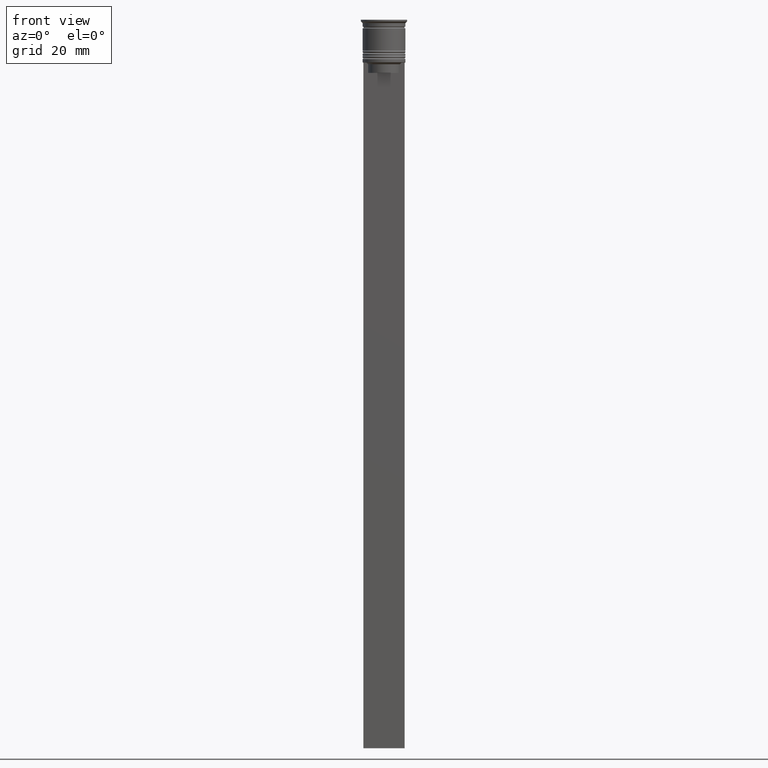
[diagram: clean part render]
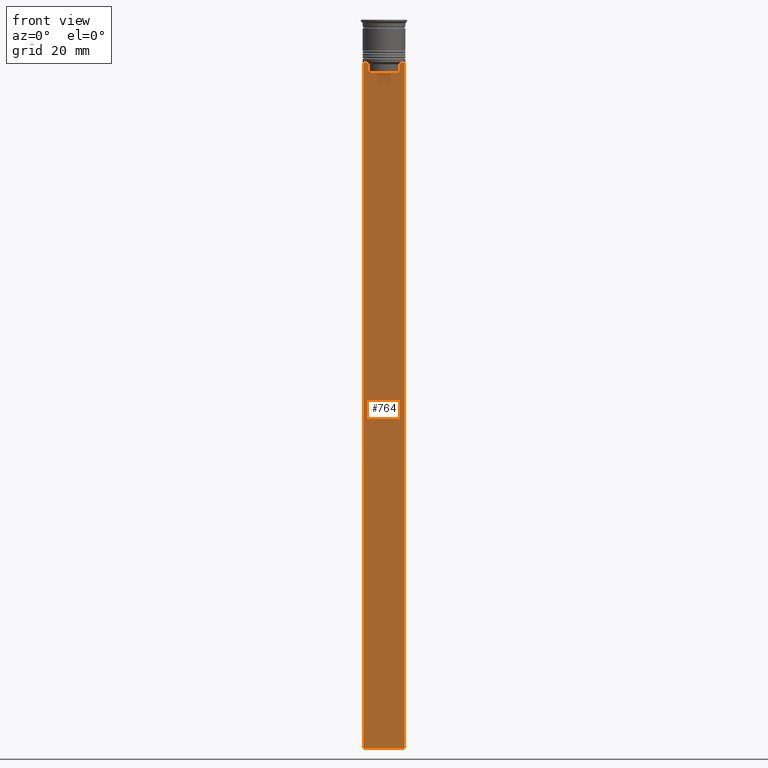
[diagram: same view with one face highlighted and labeled with its STEP entity id]
A machine part, front view. The second image highlights one B-rep face of the part: STEP entity #764.
In plain terms, the highlighted planar face has unit normal (0, -1, -0).
Its self-contained STEP definition (entity closure, byte-faithful):
#3 = CARTESIAN_POINT ( 'NONE',  ( -5.999999999999983125, -0.5000000000000017764, -0.4584054212077061097 ) ) ;
#13 = B_SPLINE_CURVE_WITH_KNOTS ( 'NONE', 3,
 ( #1897, #294, #2239, #1358 ),
 .UNSPECIFIED., .F., .F.,
 ( 4, 4 ),
 ( 0.008759809102772709091, 0.009468778395565353653 ),
 .UNSPECIFIED. ) ;
#74 = CARTESIAN_POINT ( 'NONE',  ( 6.000000000000016875, -0.5000000000000017764, -212.5000000000000284 ) ) ;
#76 = EDGE_CURVE ( 'NONE', #2325, #270, #371, .T. ) ;
#112 = EDGE_CURVE ( 'NONE', #728, #2020, #1290, .T. ) ;
#139 = CARTESIAN_POINT ( 'NONE',  ( 0.000000000000000000, -0.5000000000000022204, -15.50000000000000000 ) ) ;
#142 = LINE ( 'NONE', #857, #750 ) ;
#156 = ORIENTED_EDGE ( 'NONE', *, *, #1346, .F. ) ;
#163 = CARTESIAN_POINT ( 'NONE',  ( 4.623040125285526436, -0.5000000000000017764, -13.00000000000000178 ) ) ;
#165 = EDGE_CURVE ( 'NONE', #2020, #2158, #385, .T. ) ;
#181 = VERTEX_POINT ( 'NONE', #1642 ) ;
#192 = DIRECTION ( 'NONE',  ( 1.000000000000000000, 0.000000000000000000, 0.000000000000000000 ) ) ;
#270 = VERTEX_POINT ( 'NONE', #1501 ) ;
#293 = CARTESIAN_POINT ( 'NONE',  ( 4.623040125285526436, -0.5000000000000022204, -15.50000000000000000 ) ) ;
#294 = CARTESIAN_POINT ( 'NONE',  ( -4.958169823806760412, -0.5000000000000017764, -12.66670956677067927 ) ) ;
#316 = VERTEX_POINT ( 'NONE', #641 ) ;
#318 = DIRECTION ( 'NONE',  ( 1.000000000000000000, 0.000000000000000000, 0.000000000000000000 ) ) ;
#332 = DIRECTION ( 'NONE',  ( 0.000000000000000000, 0.000000000000000000, -1.000000000000000000 ) ) ;
#371 = LINE ( 'NONE', #733, #1041 ) ;
#385 = LINE ( 'NONE', #1104, #555 ) ;
#465 = EDGE_CURVE ( 'NONE', #2158, #1330, #642, .T. ) ;
#495 = EDGE_CURVE ( 'NONE', #1330, #316, #1263, .T. ) ;
#555 = VECTOR ( 'NONE', #1094, 1000.000000000000000 ) ;
#581 = EDGE_LOOP ( 'NONE', ( #1700, #1282, #616, #2177, #156, #963, #937, #2254, #2233, #2289 ) ) ;
#602 = CARTESIAN_POINT ( 'NONE',  ( -5.125670687822231564, -0.5000000000000017764, -12.50000000000000000 ) ) ;
#616 = ORIENTED_EDGE ( 'NONE', *, *, #2081, .T. ) ;
#627 = VERTEX_POINT ( 'NONE', #602 ) ;
#641 = CARTESIAN_POINT ( 'NONE',  ( 6.000000000000016875, -0.5000000000000017764, -12.50000000000000000 ) ) ;
#642 = B_SPLINE_CURVE_WITH_KNOTS ( 'NONE', 3,
 ( #2306, #2162, #1286, #2341 ),
 .UNSPECIFIED., .F., .F.,
 ( 4, 4 ),
 ( 0.02203698174624552780, 0.02275222543365896383 ),
 .UNSPECIFIED. ) ;
#705 = VECTOR ( 'NONE', #318, 1000.000000000000000 ) ;
#722 = CARTESIAN_POINT ( 'NONE',  ( 6.000000000000016875, -0.5000000000000017764, -12.50000000000000000 ) ) ;
#728 = VERTEX_POINT ( 'NONE', #1737 ) ;
#733 = CARTESIAN_POINT ( 'NONE',  ( 6.000000000000016875, -0.5000000000000017764, -212.5000000000000284 ) ) ;
#750 = VECTOR ( 'NONE', #332, 1000.000000000000000 ) ;
#764 = ADVANCED_FACE ( 'NONE', ( #995 ), #1209, .T. ) ;
#777 = EDGE_CURVE ( 'NONE', #627, #181, #13, .T. ) ;
#857 = CARTESIAN_POINT ( 'NONE',  ( -4.623040125285526436, -0.5000000000000017764, 0.000000000000000000 ) ) ;
#937 = ORIENTED_EDGE ( 'NONE', *, *, #465, .F. ) ;
#963 = ORIENTED_EDGE ( 'NONE', *, *, #495, .F. ) ;
#995 = FACE_OUTER_BOUND ( 'NONE', #581, .T. ) ;
#1041 = VECTOR ( 'NONE', #1402, 1000.000000000000000 ) ;
#1069 = VERTEX_POINT ( 'NONE', #1903 ) ;
#1082 = CARTESIAN_POINT ( 'NONE',  ( 6.000000000000016875, -0.5000000000000017764, -12.50000000000000000 ) ) ;
#1094 = DIRECTION ( 'NONE',  ( -0.000000000000000000, -0.000000000000000000, 1.000000000000000000 ) ) ;
#1104 = CARTESIAN_POINT ( 'NONE',  ( 4.623040125285526436, -0.5000000000000017764, 0.000000000000000000 ) ) ;
#1209 = PLANE ( 'NONE',  #1384 ) ;
#1222 = LINE ( 'NONE', #3, #1998 ) ;
#1257 = CARTESIAN_POINT ( 'NONE',  ( 5.125670687822231564, -0.5000000000000017764, -12.50000000000000000 ) ) ;
#1263 = LINE ( 'NONE', #722, #1651 ) ;
#1282 = ORIENTED_EDGE ( 'NONE', *, *, #1366, .F. ) ;
#1286 = CARTESIAN_POINT ( 'NONE',  ( 4.958169719475987947, -0.5000000000000017764, -12.66670967060858111 ) ) ;
#1288 = VECTOR ( 'NONE', #2156, 1000.000000000000000 ) ;
#1290 = LINE ( 'NONE', #139, #705 ) ;
#1330 = VERTEX_POINT ( 'NONE', #1257 ) ;
#1346 = EDGE_CURVE ( 'NONE', #316, #2325, #1769, .T. ) ;
#1358 = CARTESIAN_POINT ( 'NONE',  ( -4.623040125285526436, -0.5000000000000017764, -13.00000000000000178 ) ) ;
#1366 = EDGE_CURVE ( 'NONE', #1069, #627, #1565, .T. ) ;
#1380 = CARTESIAN_POINT ( 'NONE',  ( 6.000000000000016875, -0.5000000000000017764, -0.4584054212077061097 ) ) ;
#1384 = AXIS2_PLACEMENT_3D ( 'NONE', #1380, #1719, #2114 ) ;
#1389 = VECTOR ( 'NONE', #1969, 1000.000000000000000 ) ;
#1402 = DIRECTION ( 'NONE',  ( -1.000000000000000000, 0.000000000000000000, 0.000000000000000000 ) ) ;
#1501 = CARTESIAN_POINT ( 'NONE',  ( -5.999999999999983125, -0.5000000000000017764, -212.5000000000000284 ) ) ;
#1565 = LINE ( 'NONE', #1082, #1389 ) ;
#1618 = DIRECTION ( 'NONE',  ( 0.000000000000000000, 0.000000000000000000, -1.000000000000000000 ) ) ;
#1642 = CARTESIAN_POINT ( 'NONE',  ( -4.623040125285526436, -0.5000000000000017764, -13.00000000000000178 ) ) ;
#1651 = VECTOR ( 'NONE', #192, 1000.000000000000000 ) ;
#1700 = ORIENTED_EDGE ( 'NONE', *, *, #777, .F. ) ;
#1719 = DIRECTION ( 'NONE',  ( 0.000000000000000000, -1.000000000000000000, -0.000000000000000000 ) ) ;
#1737 = CARTESIAN_POINT ( 'NONE',  ( -4.623040125285526436, -0.5000000000000022204, -15.50000000000000000 ) ) ;
#1769 = LINE ( 'NONE', #2121, #1288 ) ;
#1897 = CARTESIAN_POINT ( 'NONE',  ( -5.125670687822231564, -0.5000000000000017764, -12.50000000000000000 ) ) ;
#1903 = CARTESIAN_POINT ( 'NONE',  ( -5.999999999999983125, -0.5000000000000017764, -12.50000000000000000 ) ) ;
#1969 = DIRECTION ( 'NONE',  ( 1.000000000000000000, 0.000000000000000000, 0.000000000000000000 ) ) ;
#1998 = VECTOR ( 'NONE', #1618, 1000.000000000000000 ) ;
#2020 = VERTEX_POINT ( 'NONE', #293 ) ;
#2081 = EDGE_CURVE ( 'NONE', #1069, #270, #1222, .T. ) ;
#2114 = DIRECTION ( 'NONE',  ( 0.000000000000000000, 0.000000000000000000, -1.000000000000000000 ) ) ;
#2121 = CARTESIAN_POINT ( 'NONE',  ( 6.000000000000016875, -0.5000000000000017764, -0.4584054212077061097 ) ) ;
#2135 = EDGE_CURVE ( 'NONE', #181, #728, #142, .T. ) ;
#2156 = DIRECTION ( 'NONE',  ( 0.000000000000000000, 0.000000000000000000, -1.000000000000000000 ) ) ;
#2158 = VERTEX_POINT ( 'NONE', #163 ) ;
#2162 = CARTESIAN_POINT ( 'NONE',  ( 4.790630799407577634, -0.5000000000000017764, -12.83338098686238915 ) ) ;
#2177 = ORIENTED_EDGE ( 'NONE', *, *, #76, .F. ) ;
#2233 = ORIENTED_EDGE ( 'NONE', *, *, #112, .F. ) ;
#2239 = CARTESIAN_POINT ( 'NONE',  ( -4.790630915080664742, -0.5000000000000017764, -12.83338087185995491 ) ) ;
#2254 = ORIENTED_EDGE ( 'NONE', *, *, #165, .F. ) ;
#2289 = ORIENTED_EDGE ( 'NONE', *, *, #2135, .F. ) ;
#2306 = CARTESIAN_POINT ( 'NONE',  ( 4.623040125285526436, -0.5000000000000017764, -13.00000000000000178 ) ) ;
#2325 = VERTEX_POINT ( 'NONE', #74 ) ;
#2341 = CARTESIAN_POINT ( 'NONE',  ( 5.125670687822231564, -0.5000000000000017764, -12.50000000000000000 ) ) ;